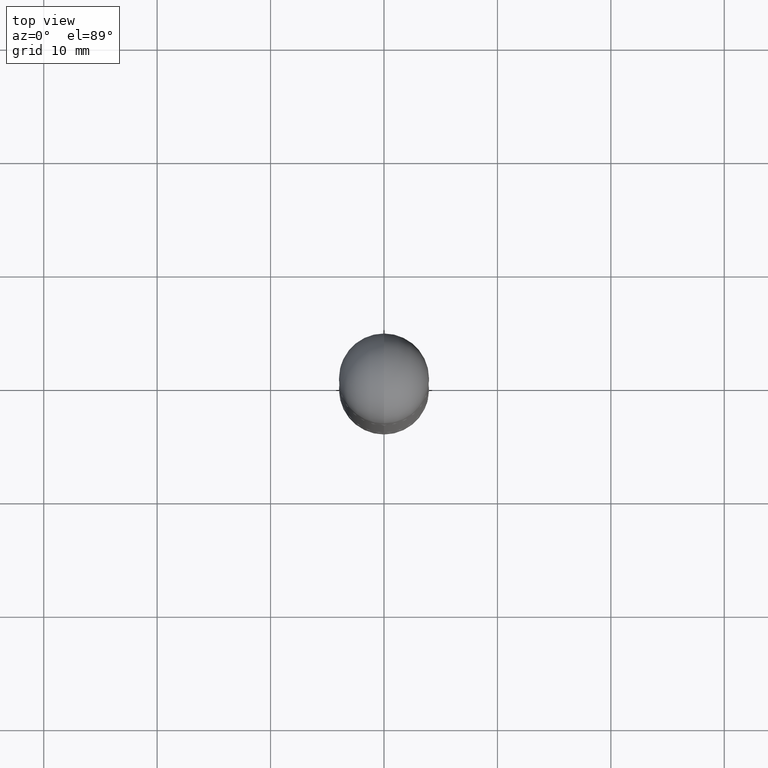
[diagram: clean part render]
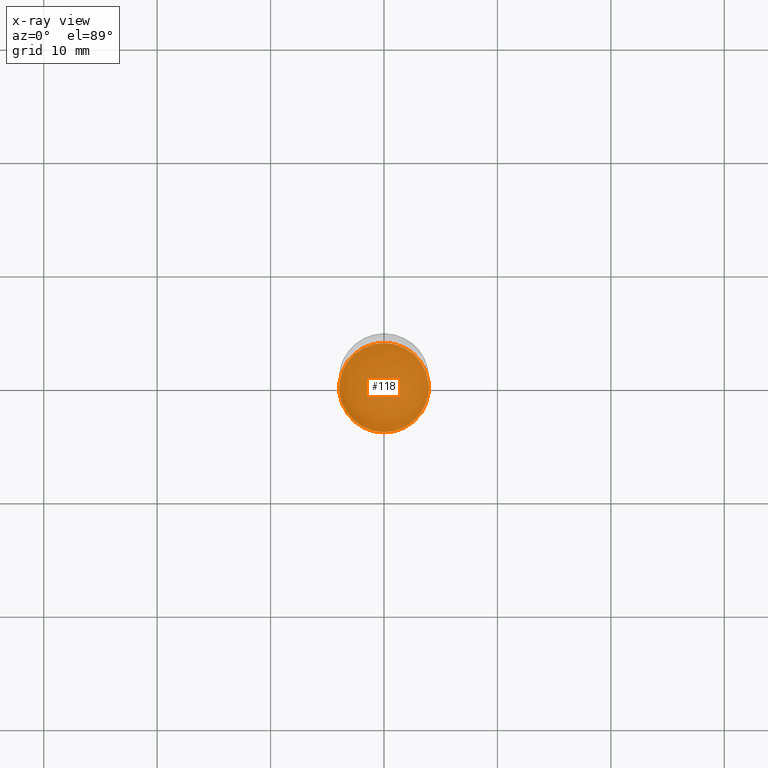
[diagram: x-ray — body ghosted, one internal face saturated and labeled with its STEP entity id]
A machine part, top view, then the same camera in x-ray: the body is ghosted and one INTERNAL B-rep face — a face not visible from any outside direction — is saturated and labeled: STEP entity #118.
In plain terms, the highlighted planar face has unit normal (-0, 0, 1).
Its self-contained STEP definition (entity closure, byte-faithful):
#80 = DIRECTION ( 'NONE',  ( -2.446114484898439135E-29, 3.490556690175946223E-15, 1.000000000000000000 ) ) ;
#118 = ADVANCED_FACE ( 'NONE', ( #645 ), #322, .F. ) ;
#141 = DIRECTION ( 'NONE',  ( -6.982962677686265922E-15, -1.000000000000000000, 3.519288880726909138E-15 ) ) ;
#144 = CARTESIAN_POINT ( 'NONE',  ( 4.892228969796878830E-29, -6.981113380351893236E-15, -2.000000000000000444 ) ) ;
#160 = DIRECTION ( 'NONE',  ( -6.982962677686265922E-15, -1.000000000000000000, 3.519288880726909138E-15 ) ) ;
#185 = CIRCLE ( 'NONE', #395, 0.1552499999999999991 ) ;
#217 = AXIS2_PLACEMENT_3D ( 'NONE', #579, #671, #280 ) ;
#254 = ORIENTED_EDGE ( 'NONE', *, *, #806, .F. ) ;
#261 = AXIS2_PLACEMENT_3D ( 'NONE', #405, #663, #160 ) ;
#280 = DIRECTION ( 'NONE',  ( -6.982962677686265922E-15, -1.000000000000000000, 3.490556690175946618E-15 ) ) ;
#322 = PLANE ( 'NONE',  #217 ) ;
#374 = CARTESIAN_POINT ( 'NONE',  ( -1.084104955710744053E-15, -0.1552500000000069658, -1.999999999999999778 ) ) ;
#393 = VERTEX_POINT ( 'NONE', #664 ) ;
#395 = AXIS2_PLACEMENT_3D ( 'NONE', #144, #80, #141 ) ;
#405 = CARTESIAN_POINT ( 'NONE',  ( 4.892228969796878830E-29, -6.981113380351893236E-15, -2.000000000000000444 ) ) ;
#413 = EDGE_CURVE ( 'NONE', #393, #651, #185, .T. ) ;
#439 = EDGE_LOOP ( 'NONE', ( #254, #592 ) ) ;
#564 = CIRCLE ( 'NONE', #261, 0.1552499999999999991 ) ;
#579 = CARTESIAN_POINT ( 'NONE',  ( 4.892228969796878269E-29, -6.981113380351892447E-15, -2.000000000000000000 ) ) ;
#592 = ORIENTED_EDGE ( 'NONE', *, *, #413, .F. ) ;
#645 = FACE_OUTER_BOUND ( 'NONE', #439, .T. ) ;
#651 = VERTEX_POINT ( 'NONE', #374 ) ;
#663 = DIRECTION ( 'NONE',  ( -2.446114484898439135E-29, 3.490556690175946223E-15, 1.000000000000000000 ) ) ;
#664 = CARTESIAN_POINT ( 'NONE',  ( 1.106670310946405735E-15, 0.1552499999999930325, -2.000000000000000888 ) ) ;
#671 = DIRECTION ( 'NONE',  ( -2.446114484898438574E-29, 3.490556690175946618E-15, 1.000000000000000000 ) ) ;
#806 = EDGE_CURVE ( 'NONE', #651, #393, #564, .T. ) ;